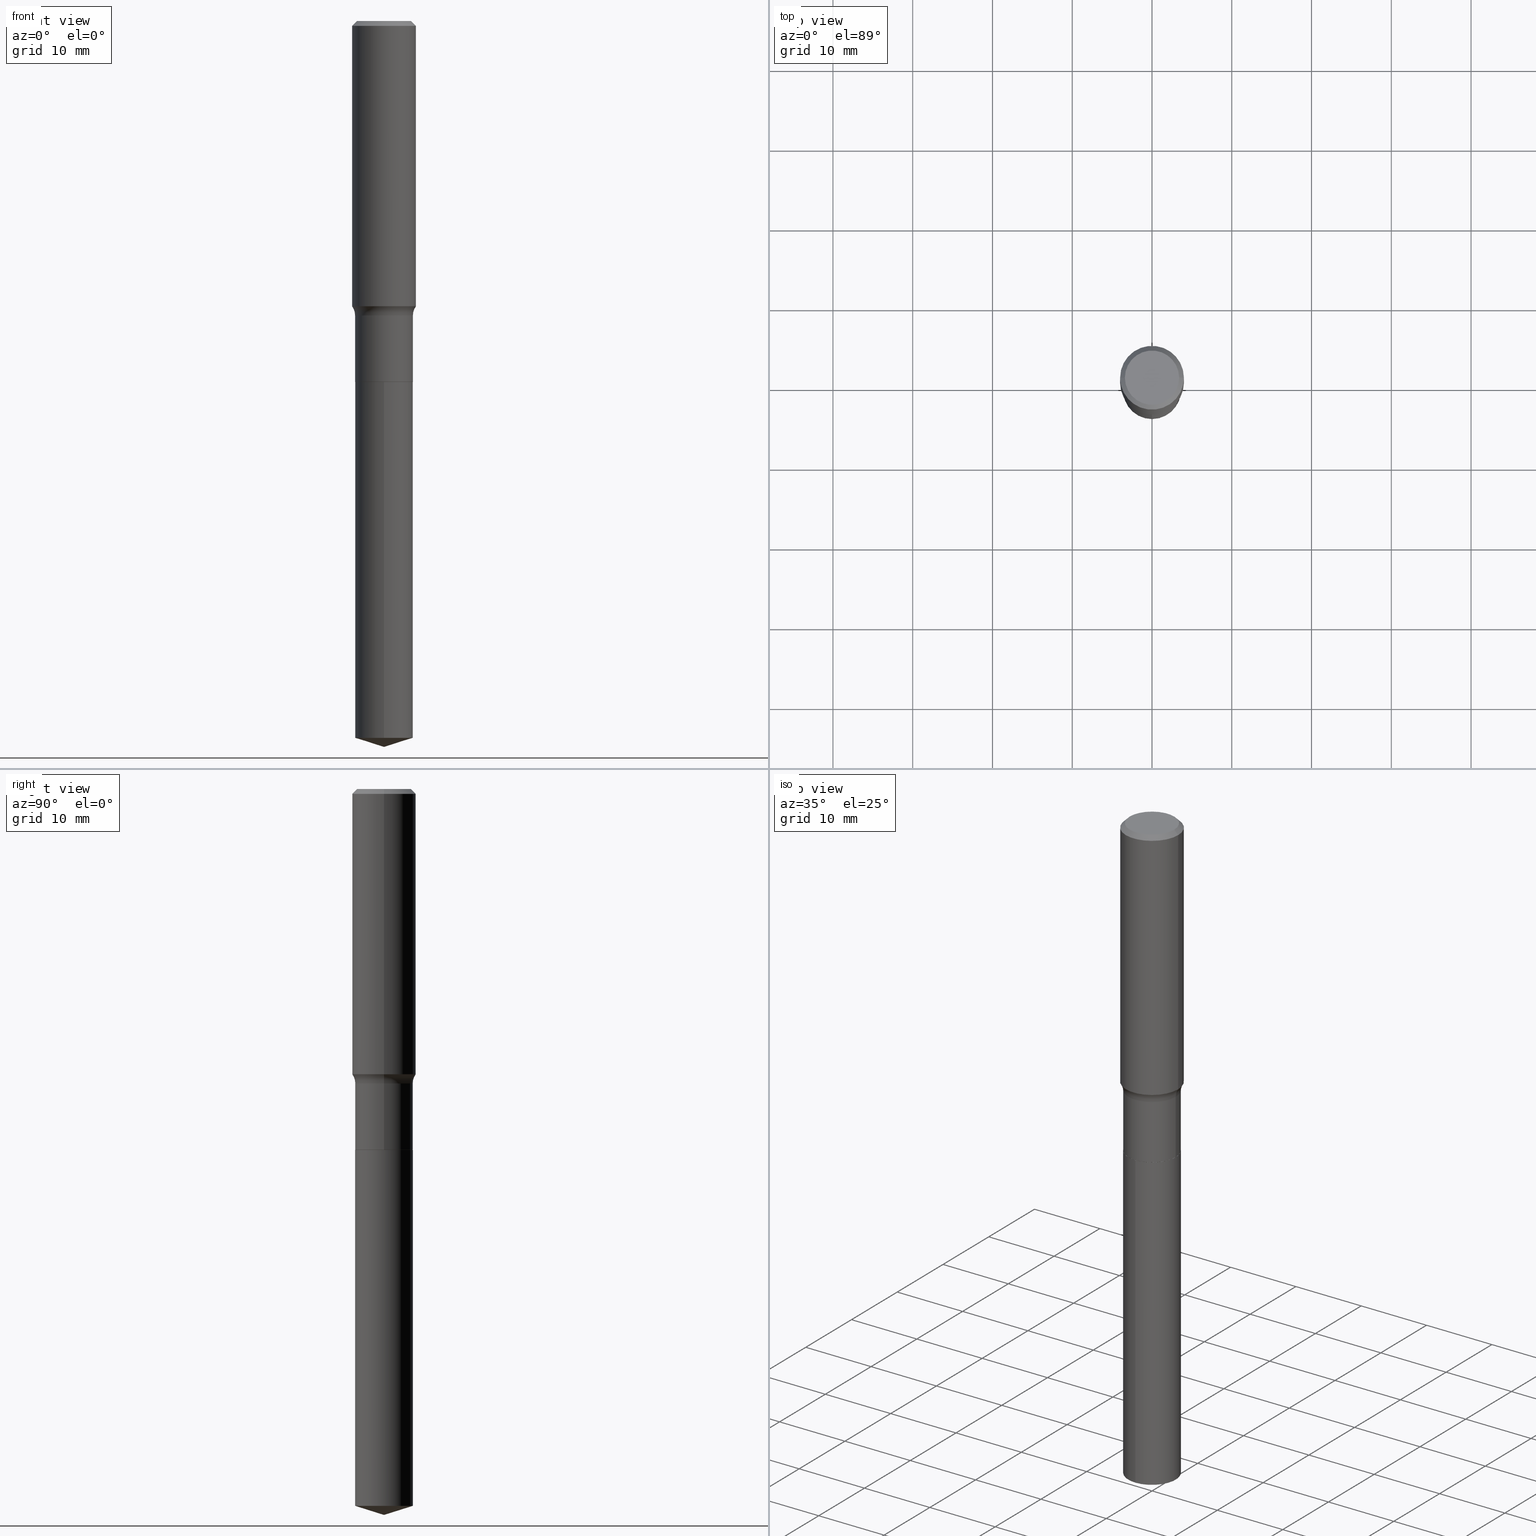
[diagram: canonical four-view strip — front | top / right | iso, engineering-drawing reading convention]
A machine part, canonical four-view strip (front | top / right | iso — engineering-drawing reading convention). The complete STEP part file that produces these views, byte-faithful:
ISO-10303-21;
HEADER;
FILE_DESCRIPTION (( 'STEP AP203' ),
    '1' );
FILE_NAME ('64145.STEP',
    '2024-04-19T15:20:46',
    ( '' ),
    ( '' ),
    'SwSTEP 2.0',
    'SolidWorks 2023',
    '' );
FILE_SCHEMA (( 'CONFIG_CONTROL_DESIGN' ));
ENDSEC;

DATA;
#1 = EDGE_CURVE ( 'NONE', #144, #358, #231, .T. ) ;
#2 = AXIS2_PLACEMENT_3D ( 'NONE', #35, #404, #405 ) ;
#3 = DIRECTION ( 'NONE',  ( -1.000000000000000000, 6.982962677686265922E-15, 0.000000000000000000 ) ) ;
#4 = ORIENTED_EDGE ( 'NONE', *, *, #477, .T. ) ;
#5 = EDGE_CURVE ( 'NONE', #464, #215, #459, .T. ) ;
#6 = CARTESIAN_POINT ( 'NONE',  ( 8.761496196201283882E-29, -1.250876678183154699E-14, -3.582699999999999996 ) ) ;
#7 = FACE_OUTER_BOUND ( 'NONE', #491, .T. ) ;
#8 = ORIENTED_EDGE ( 'NONE', *, *, #397, .F. ) ;
#9 = APPLICATION_PROTOCOL_DEFINITION ( 'international standard', 'config_control_design', 1994, #384 ) ;
#10 = ORIENTED_EDGE ( 'NONE', *, *, #339, .T. ) ;
#11 = PERSON_AND_ORGANIZATION_ROLE ( 'creator' ) ;
#12 = ORIENTED_EDGE ( 'NONE', *, *, #393, .T. ) ;
#13 = ORIENTED_EDGE ( 'NONE', *, *, #312, .F. ) ;
#14 = COORDINATED_UNIVERSAL_TIME_OFFSET ( 5, 0, .BEHIND. ) ;
#15 = CARTESIAN_POINT ( 'NONE',  ( 0.000000000000000000, 0.000000000000000000, 0.000000000000000000 ) ) ;
#16 = AXIS2_PLACEMENT_3D ( 'NONE', #382, #429, #271 ) ;
#17 = AXIS2_PLACEMENT_3D ( 'NONE', #173, #24, #285 ) ;
#18 = CARTESIAN_POINT ( 'NONE',  ( -9.964687741057865457E-16, -0.1427000000000062108, -1.781499999999999861 ) ) ;
#19 = ORIENTED_EDGE ( 'NONE', *, *, #238, .F. ) ;
#20 = LINE ( 'NONE', #55, #121 ) ;
#21 = DIRECTION ( 'NONE',  ( 1.000000000000000000, -6.982962677686265922E-15, 4.876176775795936353E-29 ) ) ;
#22 = AXIS2_PLACEMENT_3D ( 'NONE', #258, #488, #400 ) ;
#23 = ORIENTED_EDGE ( 'NONE', *, *, #5, .F. ) ;
#24 = DIRECTION ( 'NONE',  ( -2.445468806185136597E-29, 3.491481338843145583E-15, 1.000000000000000000 ) ) ;
#25 = VERTEX_POINT ( 'NONE', #134 ) ;
#26 = CARTESIAN_POINT ( 'NONE',  ( 4.356602678218821524E-29, -6.220074005149064918E-15, -1.781500000000000306 ) ) ;
#27 = ORIENTED_EDGE ( 'NONE', *, *, #43, .F. ) ;
#28 = PLANE ( 'NONE',  #107 ) ;
#29 = EDGE_CURVE ( 'NONE', #262, #441, #265, .T. ) ;
#30 = AXIS2_PLACEMENT_3D ( 'NONE', #349, #418, #236 ) ;
#31 = AXIS2_PLACEMENT_3D ( 'NONE', #321, #396, #280 ) ;
#32 = LOCAL_TIME ( 11, 20, 46.00000000000000000, #354 ) ;
#33 =( LENGTH_UNIT ( ) NAMED_UNIT ( * ) SI_UNIT ( $, .METRE. ) );
#34 = APPLICATION_CONTEXT ( 'configuration controlled 3d designs of mechanical parts and assemblies' ) ;
#35 = CARTESIAN_POINT ( 'NONE',  ( -8.751811493492588278E-28, 1.249492514799709219E-13, 35.78737874015747877 ) ) ;
#36 = CARTESIAN_POINT ( 'NONE',  ( 4.356602678218821524E-29, -6.220074005149064918E-15, -1.781500000000000306 ) ) ;
#37 = AXIS2_PLACEMENT_3D ( 'NONE', #289, #207, #209 ) ;
#38 = FACE_OUTER_BOUND ( 'NONE', #67, .T. ) ;
#39 = LOCAL_TIME ( 11, 20, 46.00000000000000000, #427 ) ;
#40 = DIRECTION ( 'NONE',  ( -2.445468806185136597E-29, 3.491481338843145583E-15, 1.000000000000000000 ) ) ;
#41 = DIRECTION ( 'NONE',  ( -2.445468806185136597E-29, 3.491481338843145583E-15, 1.000000000000000000 ) ) ;
#42 = LENGTH_MEASURE_WITH_UNIT ( LENGTH_MEASURE( 0.02539999999999999897 ), #33 );
#43 = EDGE_CURVE ( 'NONE', #58, #436, #202, .T. ) ;
#44 = CC_DESIGN_PERSON_AND_ORGANIZATION_ASSIGNMENT ( #116, #411, ( #259 ) ) ;
#45 = CARTESIAN_POINT ( 'NONE',  ( -0.1575000000000001676, -3.795455817087887933E-15, -1.407586107144545018 ) ) ;
#46 = ORIENTED_EDGE ( 'NONE', *, *, #339, .F. ) ;
#47 = CIRCLE ( 'NONE', #218, 0.1426999999999999935 ) ;
#48 = DIRECTION ( 'NONE',  ( -2.438088387897960049E-29, 3.491481338843145188E-15, 1.000000000000000000 ) ) ;
#49 = APPROVAL_ROLE ( '' ) ;
#50 = VERTEX_POINT ( 'NONE', #45 ) ;
#51 = ORIENTED_EDGE ( 'NONE', *, *, #238, .T. ) ;
#52 = APPROVAL_ROLE ( '' ) ;
#53 = CARTESIAN_POINT ( 'NONE',  ( 3.553999816028858649E-29, -5.074169829740743433E-15, -1.453300000000000036 ) ) ;
#54 = CALENDAR_DATE ( 2024, 19, 4 ) ;
#55 = CARTESIAN_POINT ( 'NONE',  ( 1.013944483929706307E-15, 0.1426999999999937763, -1.781500000000000972 ) ) ;
#56 = CIRCLE ( 'NONE', #150, 0.1426999999999999658 ) ;
#57 = PERSON_AND_ORGANIZATION_ROLE ( 'creator' ) ;
#58 = VERTEX_POINT ( 'NONE', #268 ) ;
#59 = DIRECTION ( 'NONE',  ( 7.105427357601001859E-15, 1.000000000000000000, -3.491481338843145583E-15 ) ) ;
#60 = ADVANCED_FACE ( 'NONE', ( #160 ), #191, .F. ) ;
#61 = EDGE_LOOP ( 'NONE', ( #138, #365, #266, #23 ) ) ;
#62 = CARTESIAN_POINT ( 'NONE',  ( -0.1426999999999999658, 1.013944483929662722E-15, -7.019320373793748916E-30 ) ) ;
#63 = ORIENTED_EDGE ( 'NONE', *, *, #89, .F. ) ;
#64 = DIRECTION ( 'NONE',  ( -2.445468806185136597E-29, 3.491481338843145583E-15, 1.000000000000000000 ) ) ;
#65 = AXIS2_PLACEMENT_3D ( 'NONE', #452, #374, #164 ) ;
#66 = FACE_OUTER_BOUND ( 'NONE', #288, .T. ) ;
#67 = EDGE_LOOP ( 'NONE', ( #330, #12, #93, #292 ) ) ;
#68 = LINE ( 'NONE', #372, #100 ) ;
#69 = DIRECTION ( 'NONE',  ( -2.445468806185136597E-29, 3.491481338843145583E-15, 1.000000000000000000 ) ) ;
#70 = EDGE_CURVE ( 'NONE', #454, #358, #389, .T. ) ;
#71 = CIRCLE ( 'NONE', #314, 0.1575000000000000011 ) ;
#72 = CIRCLE ( 'NONE', #457, 0.07799999999999999989 ) ;
#73 = AXIS2_PLACEMENT_3D ( 'NONE', #184, #333, #492 ) ;
#74 = CARTESIAN_POINT ( 'NONE',  ( 3.553999816028858649E-29, -5.074169829740743433E-15, -1.453300000000000036 ) ) ;
#75 = EDGE_CURVE ( 'NONE', #262, #275, #455, .T. ) ;
#76 = FACE_OUTER_BOUND ( 'NONE', #122, .T. ) ;
#77 = EDGE_CURVE ( 'NONE', #436, #58, #407, .T. ) ;
#78 = APPLICATION_PROTOCOL_DEFINITION ( 'international standard', 'config_control_design', 1994, #34 ) ;
#79 = CARTESIAN_POINT ( 'NONE',  ( -0.1426999999999999658, -4.632304563180530110E-15, -1.453300000000000036 ) ) ;
#80 = CARTESIAN_POINT ( 'NONE',  ( 5.777420054612421104E-31, -8.248624663016984002E-17, -0.02362500000000014588 ) ) ;
#81 = ORIENTED_EDGE ( 'NONE', *, *, #89, .T. ) ;
#82 = EDGE_CURVE ( 'NONE', #25, #310, #87, .T. ) ;
#83 = CC_DESIGN_DATE_AND_TIME_ASSIGNMENT ( #234, #94, ( #192 ) ) ;
#84 = CARTESIAN_POINT ( 'NONE',  ( -1.002970424325033577E-46, 1.431975951230896486E-32, 4.101342130344485961E-18 ) ) ;
#85 = PERSON ( 'UNSPECIFIED', 'UNSPECIFIED', 'UNSPECIFIED', ('UNSPECIFIED'), ('UNSPECIFIED'), ('UNSPECIFIED') ) ;
#86 = ORIENTED_EDGE ( 'NONE', *, *, #414, .F. ) ;
#87 = CIRCLE ( 'NONE', #360, 0.1426999999999999935 ) ;
#88 = DIRECTION ( 'NONE',  ( -2.445468806185136597E-29, 3.491481338843145583E-15, 1.000000000000000000 ) ) ;
#89 = EDGE_CURVE ( 'NONE', #378, #464, #217, .T. ) ;
#90 = EDGE_LOOP ( 'NONE', ( #97, #320, #104, #290 ) ) ;
#91 = APPROVAL_DATE_TIME ( #96, #120 ) ;
#92 = DIRECTION ( 'NONE',  ( -2.445500656237034607E-29, 3.491435727756035230E-15, 1.000000000000000000 ) ) ;
#93 = ORIENTED_EDGE ( 'NONE', *, *, #112, .T. ) ;
#94 = DATE_TIME_ROLE ( 'classification_date' ) ;
#95 = CARTESIAN_POINT ( 'NONE',  ( 0.1575000000000000011, -1.163014681279185964E-15, -0.02362500000000014588 ) ) ;
#96 = DATE_AND_TIME ( #466, #32 ) ;
#97 = ORIENTED_EDGE ( 'NONE', *, *, #70, .T. ) ;
#98 = DIRECTION ( 'NONE',  ( 1.000000000000000000, -6.982962677686266711E-15, 0.000000000000000000 ) ) ;
#99 = VECTOR ( 'NONE', #223, 39.37007874015748143 ) ;
#100 = VECTOR ( 'NONE', #325, 39.37007874015748143 ) ;
#101 = ORIENTED_EDGE ( 'NONE', *, *, #140, .T. ) ;
#102 = CARTESIAN_POINT ( 'NONE',  ( 1.013944483929749694E-15, 0.1426999999999937763, -1.781500000000000972 ) ) ;
#103 = DIRECTION ( 'NONE',  ( -2.445468806185136597E-29, 3.491481338843145583E-15, 1.000000000000000000 ) ) ;
#104 = ORIENTED_EDGE ( 'NONE', *, *, #82, .F. ) ;
#105 = AXIS2_PLACEMENT_3D ( 'NONE', #194, #117, #412 ) ;
#106 = ADVANCED_FACE ( 'NONE', ( #270 ), #168, .T. ) ;
#107 = AXIS2_PLACEMENT_3D ( 'NONE', #445, #444, #179 ) ;
#108 = EDGE_LOOP ( 'NONE', ( #126, #282, #249, #128 ) ) ;
#109 = DIRECTION ( 'NONE',  ( 1.000000000000000000, -6.982962677686265922E-15, 4.883557194083112901E-29 ) ) ;
#110 = CYLINDRICAL_SURFACE ( 'NONE', #425, 0.1575000000000000844 ) ;
#111 = CARTESIAN_POINT ( 'NONE',  ( 0.1421999999999999931, -7.213051297916053224E-15, -1.781500000000000750 ) ) ;
#112 = EDGE_CURVE ( 'NONE', #441, #385, #71, .T. ) ;
#113 = AXIS2_PLACEMENT_3D ( 'NONE', #74, #291, #109 ) ;
#114 = FACE_OUTER_BOUND ( 'NONE', #152, .T. ) ;
#115 = ORIENTED_EDGE ( 'NONE', *, *, #450, .F. ) ;
#116 = PERSON_AND_ORGANIZATION ( #85, #253 ) ;
#117 = DIRECTION ( 'NONE',  ( -2.445468806185136597E-29, 3.491481338843145583E-15, 1.000000000000000000 ) ) ;
#118 = CARTESIAN_POINT ( 'NONE',  ( -0.1426999999999999935, -4.632304563180530110E-15, -1.781000000000000583 ) ) ;
#119 = ORIENTED_EDGE ( 'NONE', *, *, #477, .F. ) ;
#120 = APPROVAL ( #281, 'UNSPECIFIED' ) ;
#121 = VECTOR ( 'NONE', #211, 39.37007874015748143 ) ;
#122 = EDGE_LOOP ( 'NONE', ( #246, #141, #101, #475 ) ) ;
#123 = CARTESIAN_POINT ( 'NONE',  ( 4.356602678218822085E-29, -6.220074005149066496E-15, -1.781500000000000750 ) ) ;
#124 = CARTESIAN_POINT ( 'NONE',  ( 0.1575000000000000844, -1.099816621735587677E-15, 7.679978421878603638E-30 ) ) ;
#125 =( NAMED_UNIT ( * ) SI_UNIT ( $, .STERADIAN. ) SOLID_ANGLE_UNIT ( ) );
#126 = ORIENTED_EDGE ( 'NONE', *, *, #311, .F. ) ;
#127 = ORIENTED_EDGE ( 'NONE', *, *, #82, .T. ) ;
#128 = ORIENTED_EDGE ( 'NONE', *, *, #451, .F. ) ;
#129 = DIRECTION ( 'NONE',  ( 2.445468806185136597E-29, -3.491481338843145583E-15, -1.000000000000000000 ) ) ;
#130 = PERSON_AND_ORGANIZATION ( #85, #253 ) ;
#131 = EDGE_LOOP ( 'NONE', ( #383, #10, #295, #230 ) ) ;
#132 = LINE ( 'NONE', #62, #334 ) ;
#133 = CC_DESIGN_APPROVAL ( #440, ( #180 ) ) ;
#134 = CARTESIAN_POINT ( 'NONE',  ( -9.964687741057865457E-16, -0.1427000000000062108, -1.781499999999999861 ) ) ;
#135 = PERSON_AND_ORGANIZATION_ROLE ( 'classification_officer' ) ;
#136 = LINE ( 'NONE', #95, #341 ) ;
#137 = PERSON_AND_ORGANIZATION ( #85, #253 ) ;
#138 = ORIENTED_EDGE ( 'NONE', *, *, #312, .T. ) ;
#139 = CYLINDRICAL_SURFACE ( 'NONE', #232, 0.1426999999999999658 ) ;
#140 = EDGE_CURVE ( 'NONE', #174, #275, #56, .T. ) ;
#141 = ORIENTED_EDGE ( 'NONE', *, *, #397, .T. ) ;
#142 = CARTESIAN_POINT ( 'NONE',  ( 4.356602678218822085E-29, -6.220074005149066496E-15, -1.781500000000000750 ) ) ;
#143 = CONICAL_SURFACE ( 'NONE', #442, 0.1575000000000000011, 0.7853981633974449483 ) ;
#144 = VERTEX_POINT ( 'NONE', #465 ) ;
#145 = FACE_OUTER_BOUND ( 'NONE', #419, .T. ) ;
#146 = UNCERTAINTY_MEASURE_WITH_UNIT (LENGTH_MEASURE( 1.000000000000000082E-05 ), #373, 'distance_accuracy_value', 'NONE');
#147 = ORIENTED_EDGE ( 'NONE', *, *, #1, .T. ) ;
#148 = ADVANCED_FACE ( 'NONE', ( #462 ), #423, .F. ) ;
#149 = CARTESIAN_POINT ( 'NONE',  ( 0.1575000000000000011, -1.182302868365756679E-15, -0.02362500000000014588 ) ) ;
#150 = AXIS2_PLACEMENT_3D ( 'NONE', #189, #40, #308 ) ;
#151 = CARTESIAN_POINT ( 'NONE',  ( 0.1338749999999999940, -1.040731925365424925E-15, 4.101342130351393887E-18 ) ) ;
#152 = EDGE_LOOP ( 'NONE', ( #119, #147, #413 ) ) ;
#153 = MECHANICAL_CONTEXT ( 'NONE', #384, 'mechanical' ) ;
#154 = ADVANCED_FACE ( 'NONE', ( #7 ), #352, .F. ) ;
#155 = DIRECTION ( 'NONE',  ( -6.982962677686265922E-15, -1.000000000000000000, 3.828798869886843840E-15 ) ) ;
#156 = DIRECTION ( 'NONE',  ( 2.445468806185136597E-29, -3.491481338843145583E-15, -1.000000000000000000 ) ) ;
#157 = CARTESIAN_POINT ( 'NONE',  ( 0.2206999999999999518, -6.615309692706102003E-15, -1.453300000000000036 ) ) ;
#158 = AXIS2_PLACEMENT_3D ( 'NONE', #142, #355, #244 ) ;
#159 =( GEOMETRIC_REPRESENTATION_CONTEXT ( 3 ) GLOBAL_UNCERTAINTY_ASSIGNED_CONTEXT ( ( #146 ) ) GLOBAL_UNIT_ASSIGNED_CONTEXT ( ( #373, #343, #125 ) ) REPRESENTATION_CONTEXT ( 'NONE', 'WORKASPACE' ) );
#160 = FACE_OUTER_BOUND ( 'NONE', #348, .T. ) ;
#161 = EDGE_CURVE ( 'NONE', #50, #385, #269, .T. ) ;
#162 = CARTESIAN_POINT ( 'NONE',  ( 4.356602678218822085E-29, -6.220074005149066496E-15, -1.781500000000000750 ) ) ;
#163 = PERSON_AND_ORGANIZATION ( #85, #253 ) ;
#164 = DIRECTION ( 'NONE',  ( 6.982962677686265922E-15, 1.000000000000000000, -3.491435727756035230E-15 ) ) ;
#165 = DIRECTION ( 'NONE',  ( -6.982962677686266711E-15, -1.000000000000000000, 3.491481338843145583E-15 ) ) ;
#166 = DATE_TIME_ROLE ( 'creation_date' ) ;
#167 = CARTESIAN_POINT ( 'NONE',  ( 1.013944483929749694E-15, 0.1426999999999876700, -3.537706862826970333 ) ) ;
#168 = CONICAL_SURFACE ( 'NONE', #212, 0.1575000000000000011, 0.7853981633974449483 ) ;
#169 = CC_DESIGN_APPROVAL ( #120, ( #458 ) ) ;
#170 = DIRECTION ( 'NONE',  ( -2.445468806185136877E-29, 3.491481338843145188E-15, 1.000000000000000000 ) ) ;
#171 = EDGE_CURVE ( 'NONE', #215, #206, #328, .T. ) ;
#172 = ORIENTED_EDGE ( 'NONE', *, *, #29, .F. ) ;
#173 = CARTESIAN_POINT ( 'NONE',  ( 4.355379943815729283E-29, -6.218328264479644203E-15, -1.781000000000000583 ) ) ;
#174 = VERTEX_POINT ( 'NONE', #79 ) ;
#175 = DIRECTION ( 'NONE',  ( -1.000000000000000000, 7.105427357600997914E-15, 0.000000000000000000 ) ) ;
#176 = VECTOR ( 'NONE', #344, 39.37007874015748143 ) ;
#177 = AXIS2_PLACEMENT_3D ( 'NONE', #255, #254, #221 ) ;
#178 = DIRECTION ( 'NONE',  ( 1.000000000000000000, -6.982962677686265922E-15, 0.000000000000000000 ) ) ;
#179 = DIRECTION ( 'NONE',  ( -1.000000000000000000, 6.982962677686265922E-15, -4.876176775795935793E-29 ) ) ;
#180 = PRODUCT_DEFINITION ( 'UNKNOWN', '', #458, #227 ) ;
#181 = ORIENTED_EDGE ( 'NONE', *, *, #346, .F. ) ;
#182 = CARTESIAN_POINT ( 'NONE',  ( 8.761381719365510106E-29, -1.250892929413492216E-14, -3.582699999999999996 ) ) ;
#183 = ORIENTED_EDGE ( 'NONE', *, *, #140, .F. ) ;
#184 = CARTESIAN_POINT ( 'NONE',  ( 0.000000000000000000, 0.000000000000000000, 0.000000000000000000 ) ) ;
#185 = AXIS2_PLACEMENT_3D ( 'NONE', #188, #88, #304 ) ;
#186 = EDGE_CURVE ( 'NONE', #215, #275, #267, .T. ) ;
#187 = DIRECTION ( 'NONE',  ( -2.445468806185136597E-29, 3.491481338843145583E-15, 1.000000000000000000 ) ) ;
#188 = CARTESIAN_POINT ( 'NONE',  ( 3.553999816028858649E-29, -5.074169829740743433E-15, -1.453300000000000036 ) ) ;
#189 = CARTESIAN_POINT ( 'NONE',  ( 3.553999816028858649E-29, -5.074169829740743433E-15, -1.453300000000000036 ) ) ;
#190 = ADVANCED_FACE ( 'NONE', ( #38 ), #143, .T. ) ;
#191 = PLANE ( 'NONE',  #447 ) ;
#192 = SECURITY_CLASSIFICATION ( '', '', #237 ) ;
#193 = ORIENTED_EDGE ( 'NONE', *, *, #29, .T. ) ;
#194 = CARTESIAN_POINT ( 'NONE',  ( 4.355379943815729283E-29, -6.218328264479644203E-15, -1.781000000000000583 ) ) ;
#195 = DIRECTION ( 'NONE',  ( 1.000000000000000000, -6.982962677686266711E-15, 4.876170806578254279E-29 ) ) ;
#196 = APPROVAL_DATE_TIME ( #391, #440 ) ;
#197 = EDGE_LOOP ( 'NONE', ( #361, #371, #467, #172 ) ) ;
#198 = DIRECTION ( 'NONE',  ( 0.7071067811864267805, -2.468850131080992517E-15, 0.7071067811866682540 ) ) ;
#199 = CALENDAR_DATE ( 2024, 19, 4 ) ;
#200 = CARTESIAN_POINT ( 'NONE',  ( 8.651407713750158819E-29, -1.235175739135348952E-14, -3.537706862826969889 ) ) ;
#201 = CALENDAR_DATE ( 2024, 19, 4 ) ;
#202 = CIRCLE ( 'NONE', #16, 0.1338749999999999940 ) ;
#203 = CONICAL_SURFACE ( 'NONE', #158, 0.1421999999999999931, 0.7853981633972775267 ) ;
#204 = CARTESIAN_POINT ( 'NONE',  ( -0.1575000000000000011, 1.017330375105417098E-15, -0.02362500000000014588 ) ) ;
#205 = COORDINATED_UNIVERSAL_TIME_OFFSET ( 5, 0, .BEHIND. ) ;
#206 = VERTEX_POINT ( 'NONE', #118 ) ;
#207 = DIRECTION ( 'NONE',  ( -2.445468806185136597E-29, 3.491481338843145583E-15, 1.000000000000000000 ) ) ;
#208 = ORIENTED_EDGE ( 'NONE', *, *, #75, .T. ) ;
#209 = DIRECTION ( 'NONE',  ( 1.000000000000000000, -6.982962677686267499E-15, 0.000000000000000000 ) ) ;
#210 = EDGE_LOOP ( 'NONE', ( #484, #300 ) ) ;
#211 = DIRECTION ( 'NONE',  ( -2.445500656237034327E-29, 3.491435727756035230E-15, 1.000000000000000000 ) ) ;
#212 = AXIS2_PLACEMENT_3D ( 'NONE', #303, #129, #313 ) ;
#213 = ORIENTED_EDGE ( 'NONE', *, *, #347, .F. ) ;
#214 = DIRECTION ( 'NONE',  ( -6.982962677686265922E-15, -1.000000000000000000, 3.828798869886843840E-15 ) ) ;
#215 = VERTEX_POINT ( 'NONE', #301 ) ;
#216 = CARTESIAN_POINT ( 'NONE',  ( -9.964687741057439472E-16, -0.1427000000000123725, -3.537706862826969445 ) ) ;
#217 = CIRCLE ( 'NONE', #284, 0.1421999999999999931 ) ;
#218 = AXIS2_PLACEMENT_3D ( 'NONE', #200, #351, #276 ) ;
#219 = VECTOR ( 'NONE', #296, 39.37007874015748854 ) ;
#220 = LINE ( 'NONE', #182, #219 ) ;
#221 = DIRECTION ( 'NONE',  ( 1.000000000000000000, -6.982962677686267499E-15, 0.000000000000000000 ) ) ;
#222 = ADVANCED_FACE ( 'NONE', ( #456 ), #480, .T. ) ;
#223 = DIRECTION ( 'NONE',  ( -2.445468806185136877E-29, 3.491481338843145188E-15, 1.000000000000000000 ) ) ;
#224 = VECTOR ( 'NONE', #198, 39.37007874015748143 ) ;
#225 = AXIS2_PLACEMENT_3D ( 'NONE', #123, #468, #98 ) ;
#226 = CC_DESIGN_SECURITY_CLASSIFICATION ( #192, ( #458 ) ) ;
#227 = DESIGN_CONTEXT ( 'detailed design', #34, 'design' ) ;
#228 = DIRECTION ( 'NONE',  ( -2.445468806185136877E-29, 3.491481338843145188E-15, 1.000000000000000000 ) ) ;
#229 = DIRECTION ( 'NONE',  ( 1.000000000000000000, -6.982962677686266711E-15, 0.000000000000000000 ) ) ;
#230 = ORIENTED_EDGE ( 'NONE', *, *, #186, .F. ) ;
#231 = LINE ( 'NONE', #6, #176 ) ;
#232 = AXIS2_PLACEMENT_3D ( 'NONE', #316, #103, #21 ) ;
#233 = ORIENTED_EDGE ( 'NONE', *, *, #406, .T. ) ;
#234 = DATE_AND_TIME ( #201, #39 ) ;
#235 = FACE_OUTER_BOUND ( 'NONE', #197, .T. ) ;
#236 = DIRECTION ( 'NONE',  ( -6.982962677686265922E-15, -1.000000000000000000, 3.828798869886843840E-15 ) ) ;
#237 = SECURITY_CLASSIFICATION_LEVEL ( 'unclassified' ) ;
#238 = EDGE_CURVE ( 'NONE', #206, #215, #368, .T. ) ;
#239 = CC_DESIGN_PERSON_AND_ORGANIZATION_ASSIGNMENT ( #130, #57, ( #180 ) ) ;
#240 = CARTESIAN_POINT ( 'NONE',  ( 4.356602678218822085E-29, -6.220074005149066496E-15, -1.781500000000000750 ) ) ;
#241 = APPROVAL_ROLE ( '' ) ;
#242 = CLOSED_SHELL ( 'NONE', ( #248, #190, #357, #402, #376, #422, #154, #415, #106, #460, #60, #222 ) ) ;
#243 = TOROIDAL_SURFACE ( 'NONE', #113, 0.2206999999999999518, 0.07799999999999997213 ) ;
#244 = DIRECTION ( 'NONE',  ( 1.000000000000000000, -6.982962677686266711E-15, 0.000000000000000000 ) ) ;
#245 = APPROVAL_PERSON_ORGANIZATION ( #137, #120, #49 ) ;
#246 = ORIENTED_EDGE ( 'NONE', *, *, #406, .F. ) ;
#247 = DIRECTION ( 'NONE',  ( 1.000000000000000000, -6.982962677686266711E-15, 0.000000000000000000 ) ) ;
#248 = ADVANCED_FACE ( 'NONE', ( #362 ), #203, .T. ) ;
#249 = ORIENTED_EDGE ( 'NONE', *, *, #251, .T. ) ;
#250 = CARTESIAN_POINT ( 'NONE',  ( -0.1421999999999999931, -5.207033007724092091E-15, -1.781500000000000750 ) ) ;
#251 = EDGE_CURVE ( 'NONE', #454, #25, #388, .T. ) ;
#252 = VECTOR ( 'NONE', #228, 39.37007874015748143 ) ;
#253 = ORGANIZATION ( 'UNSPECIFIED', 'UNSPECIFIED', '' ) ;
#254 = DIRECTION ( 'NONE',  ( -2.445468806185136597E-29, 3.491481338843145583E-15, 1.000000000000000000 ) ) ;
#255 = CARTESIAN_POINT ( 'NONE',  ( 3.442207917041554206E-29, -4.914560625910047114E-15, -1.407586107144545018 ) ) ;
#256 = CC_DESIGN_PERSON_AND_ORGANIZATION_ASSIGNMENT ( #163, #309, ( #458 ) ) ;
#257 = ORIENTED_EDGE ( 'NONE', *, *, #186, .T. ) ;
#258 = CARTESIAN_POINT ( 'NONE',  ( 5.777420054612421104E-31, -8.248624663016984002E-17, -0.02362500000000014588 ) ) ;
#259 = PRODUCT ( '64145', '64145', '', ( #153 ) ) ;
#260 = FACE_OUTER_BOUND ( 'NONE', #90, .T. ) ;
#261 = CC_DESIGN_DATE_AND_TIME_ASSIGNMENT ( #432, #166, ( #180 ) ) ;
#262 = VERTEX_POINT ( 'NONE', #483 ) ;
#263 = VECTOR ( 'NONE', #416, 39.37007874015748143 ) ;
#264 = AXIS2_PLACEMENT_3D ( 'NONE', #36, #408, #214 ) ;
#265 = LINE ( 'NONE', #124, #252 ) ;
#266 = ORIENTED_EDGE ( 'NONE', *, *, #171, .F. ) ;
#267 = LINE ( 'NONE', #338, #99 ) ;
#268 = CARTESIAN_POINT ( 'NONE',  ( -0.1338749999999999940, 9.760872517903331886E-16, 4.101342130337804525E-18 ) ) ;
#269 = LINE ( 'NONE', #379, #263 ) ;
#270 = FACE_OUTER_BOUND ( 'NONE', #318, .T. ) ;
#271 = DIRECTION ( 'NONE',  ( 1.000000000000000000, -6.982962677686266711E-15, 4.876170806578254279E-29 ) ) ;
#272 = AXIS2_PLACEMENT_3D ( 'NONE', #489, #326, #364 ) ;
#273 = PERSON_AND_ORGANIZATION ( #85, #253 ) ;
#274 = CIRCLE ( 'NONE', #335, 0.1426999999999999935 ) ;
#275 = VERTEX_POINT ( 'NONE', #437 ) ;
#276 = DIRECTION ( 'NONE',  ( -6.982962677686265922E-15, -1.000000000000000000, 3.828798869886843840E-15 ) ) ;
#277 = ADVANCED_FACE ( 'NONE', ( #145 ), #487, .T. ) ;
#278 = CARTESIAN_POINT ( 'NONE',  ( 0.1421999999999999931, -7.213051297916053224E-15, -1.781500000000000750 ) ) ;
#279 = APPROVAL_DATE_TIME ( #350, #370 ) ;
#280 = DIRECTION ( 'NONE',  ( -6.982962677686265922E-15, -1.000000000000000000, 3.500519750498671300E-15 ) ) ;
#281 = APPROVAL_STATUS ( 'not_yet_approved' ) ;
#282 = ORIENTED_EDGE ( 'NONE', *, *, #347, .T. ) ;
#283 = DIRECTION ( 'NONE',  ( 0.7071067811865451302, -7.319954787623248157E-15, -0.7071067811865499042 ) ) ;
#284 = AXIS2_PLACEMENT_3D ( 'NONE', #162, #41, #229 ) ;
#285 = DIRECTION ( 'NONE',  ( 1.000000000000000000, -6.982962677686265133E-15, 0.000000000000000000 ) ) ;
#286 = EDGE_CURVE ( 'NONE', #275, #174, #469, .T. ) ;
#287 = PRODUCT_RELATED_PRODUCT_CATEGORY ( 'detail', '', ( #259 ) ) ;
#288 = EDGE_LOOP ( 'NONE', ( #398, #233, #193, #86 ) ) ;
#289 = CARTESIAN_POINT ( 'NONE',  ( 3.442207917041554206E-29, -4.914560625910047114E-15, -1.407586107144545018 ) ) ;
#290 = ORIENTED_EDGE ( 'NONE', *, *, #251, .F. ) ;
#291 = DIRECTION ( 'NONE',  ( -2.445468806185136597E-29, 3.491481338843145583E-15, 1.000000000000000000 ) ) ;
#292 = ORIENTED_EDGE ( 'NONE', *, *, #327, .F. ) ;
#293 = FACE_OUTER_BOUND ( 'NONE', #421, .T. ) ;
#294 = VECTOR ( 'NONE', #479, 39.37007874015748143 ) ;
#295 = ORIENTED_EDGE ( 'NONE', *, *, #286, .F. ) ;
#296 = DIRECTION ( 'NONE',  ( -6.659769872151637611E-15, -0.9537169507482274877, 0.3007057995042712317 ) ) ;
#297 = AXIS2_PLACEMENT_3D ( 'NONE', #15, #392, #356 ) ;
#298 = LOCAL_TIME ( 11, 20, 46.00000000000000000, #474 ) ;
#299 = PRODUCT_DEFINITION_SHAPE ( 'NONE', 'NONE',  #180 ) ;
#300 = ORIENTED_EDGE ( 'NONE', *, *, #77, .T. ) ;
#301 = CARTESIAN_POINT ( 'NONE',  ( 0.1426999999999999935, -7.214797038585473939E-15, -1.781000000000000583 ) ) ;
#302 = AXIS2_PLACEMENT_3D ( 'NONE', #157, #165, #420 ) ;
#303 = CARTESIAN_POINT ( 'NONE',  ( 5.777420054612421104E-31, -8.248624663016984002E-17, -0.02362500000000014588 ) ) ;
#304 = DIRECTION ( 'NONE',  ( 1.000000000000000000, -6.982962677686265922E-15, 4.883557194083112901E-29 ) ) ;
#305 = DIRECTION ( 'NONE',  ( 1.000000000000000000, -6.982962677686265922E-15, 0.000000000000000000 ) ) ;
#306 = ORIENTED_EDGE ( 'NONE', *, *, #286, .T. ) ;
#307 = MANIFOLD_SOLID_BREP ( 'Body-Move/Copy2[2]', #242 ) ;
#308 = DIRECTION ( 'NONE',  ( 1.000000000000000000, -6.982962677686265922E-15, 0.000000000000000000 ) ) ;
#309 = PERSON_AND_ORGANIZATION_ROLE ( 'design_supplier' ) ;
#310 = VERTEX_POINT ( 'NONE', #102 ) ;
#311 = EDGE_CURVE ( 'NONE', #358, #310, #20, .T. ) ;
#312 = EDGE_CURVE ( 'NONE', #464, #378, #409, .T. ) ;
#313 = DIRECTION ( 'NONE',  ( -1.000000000000000000, 6.982962677686265922E-15, 0.000000000000000000 ) ) ;
#314 = AXIS2_PLACEMENT_3D ( 'NONE', #377, #342, #305 ) ;
#315 = CALENDAR_DATE ( 2024, 19, 4 ) ;
#316 = CARTESIAN_POINT ( 'NONE',  ( 0.000000000000000000, 0.000000000000000000, 0.000000000000000000 ) ) ;
#317 = PERSON_AND_ORGANIZATION ( #85, #253 ) ;
#318 = EDGE_LOOP ( 'NONE', ( #424, #27, #324, #478 ) ) ;
#319 = FACE_OUTER_BOUND ( 'NONE', #108, .T. ) ;
#320 = ORIENTED_EDGE ( 'NONE', *, *, #311, .T. ) ;
#321 = CARTESIAN_POINT ( 'NONE',  ( -8.751811493492588278E-28, 1.249492514799709219E-13, 35.78737874015747877 ) ) ;
#322 = AXIS2_PLACEMENT_3D ( 'NONE', #476, #92, #387 ) ;
#323 = DIRECTION ( 'NONE',  ( -2.445500656237034327E-29, 3.491435727756035230E-15, 1.000000000000000000 ) ) ;
#324 = ORIENTED_EDGE ( 'NONE', *, *, #327, .T. ) ;
#325 = DIRECTION ( 'NONE',  ( -0.7071067811864267805, 7.493145998869918709E-15, 0.7071067811866682540 ) ) ;
#326 = DIRECTION ( 'NONE',  ( -2.445468806185136597E-29, 3.491481338843145583E-15, 1.000000000000000000 ) ) ;
#327 = EDGE_CURVE ( 'NONE', #58, #385, #395, .T. ) ;
#328 = CIRCLE ( 'NONE', #105, 0.1426999999999999935 ) ;
#329 = APPROVAL_PERSON_ORGANIZATION ( #317, #370, #52 ) ;
#330 = ORIENTED_EDGE ( 'NONE', *, *, #77, .F. ) ;
#331 = DIRECTION ( 'NONE',  ( 1.000000000000000000, -6.982962677686267499E-15, 4.876176775795936353E-29 ) ) ;
#332 = DIMENSIONAL_EXPONENTS ( 1.000000000000000000, 0.000000000000000000, 0.000000000000000000, 0.000000000000000000, 0.000000000000000000, 0.000000000000000000, 0.000000000000000000 ) ;
#333 = DIRECTION ( 'NONE',  ( 0.000000000000000000, 0.000000000000000000, 1.000000000000000000 ) ) ;
#334 = VECTOR ( 'NONE', #170, 39.37007874015748143 ) ;
#335 = AXIS2_PLACEMENT_3D ( 'NONE', #26, #486, #485 ) ;
#336 = EDGE_LOOP ( 'NONE', ( #127, #482 ) ) ;
#337 = PERSON_AND_ORGANIZATION ( #85, #253 ) ;
#338 = CARTESIAN_POINT ( 'NONE',  ( 0.1426999999999999658, -9.964687741058299330E-16, 6.958304259060799625E-30 ) ) ;
#339 = EDGE_CURVE ( 'NONE', #206, #174, #132, .T. ) ;
#340 = CC_DESIGN_PERSON_AND_ORGANIZATION_ASSIGNMENT ( #345, #11, ( #458 ) ) ;
#341 = VECTOR ( 'NONE', #283, 39.37007874015748143 ) ;
#342 = DIRECTION ( 'NONE',  ( -2.445468806185136597E-29, 3.491481338843145583E-15, 1.000000000000000000 ) ) ;
#343 =( NAMED_UNIT ( * ) PLANE_ANGLE_UNIT ( ) SI_UNIT ( $, .RADIAN. ) );
#344 = DIRECTION ( 'NONE',  ( 6.776566513254262871E-15, 0.9537169507482295971, 0.3007057995042646259 ) ) ;
#345 = PERSON_AND_ORGANIZATION ( #85, #253 ) ;
#346 = EDGE_CURVE ( 'NONE', #262, #50, #435, .T. ) ;
#347 = EDGE_CURVE ( 'NONE', #358, #454, #47, .T. ) ;
#348 = EDGE_LOOP ( 'NONE', ( #13, #63 ) ) ;
#349 = CARTESIAN_POINT ( 'NONE',  ( 8.651407713750158819E-29, -1.235175739135348952E-14, -3.537706862826969889 ) ) ;
#350 = DATE_AND_TIME ( #54, #470 ) ;
#351 = DIRECTION ( 'NONE',  ( -2.445500656237034607E-29, 3.491435727756035230E-15, 1.000000000000000000 ) ) ;
#352 = TOROIDAL_SURFACE ( 'NONE', #185, 0.2206999999999999518, 0.07799999999999997213 ) ;
#353 = APPROVAL_PERSON_ORGANIZATION ( #337, #440, #241 ) ;
#354 = COORDINATED_UNIVERSAL_TIME_OFFSET ( 5, 0, .BEHIND. ) ;
#355 = DIRECTION ( 'NONE',  ( -2.445468806185136597E-29, 3.491481338843145583E-15, 1.000000000000000000 ) ) ;
#356 = DIRECTION ( 'NONE',  ( 1.000000000000000000, -6.982962677686267499E-15, 4.876176775795936353E-29 ) ) ;
#357 = ADVANCED_FACE ( 'NONE', ( #235 ), #428, .T. ) ;
#358 = VERTEX_POINT ( 'NONE', #167 ) ;
#359 = CYLINDRICAL_SURFACE ( 'NONE', #322, 0.1426999999999999935 ) ;
#360 = AXIS2_PLACEMENT_3D ( 'NONE', #375, #426, #155 ) ;
#361 = ORIENTED_EDGE ( 'NONE', *, *, #346, .T. ) ;
#362 = FACE_OUTER_BOUND ( 'NONE', #61, .T. ) ;
#363 = CC_DESIGN_APPROVAL ( #370, ( #192 ) ) ;
#364 = DIRECTION ( 'NONE',  ( 1.000000000000000000, -6.982962677686265922E-15, 4.876176775795936353E-29 ) ) ;
#365 = ORIENTED_EDGE ( 'NONE', *, *, #450, .T. ) ;
#366 = FACE_OUTER_BOUND ( 'NONE', #210, .T. ) ;
#367 = AXIS2_PLACEMENT_3D ( 'NONE', #84, #187, #195 ) ;
#368 = CIRCLE ( 'NONE', #17, 0.1426999999999999935 ) ;
#369 = ADVANCED_FACE ( 'NONE', ( #319 ), #359, .T. ) ;
#370 = APPROVAL ( #472, 'UNSPECIFIED' ) ;
#371 = ORIENTED_EDGE ( 'NONE', *, *, #161, .T. ) ;
#372 = CARTESIAN_POINT ( 'NONE',  ( -0.1421999999999999931, -5.209682234898204080E-15, -1.781500000000000750 ) ) ;
#373 =( CONVERSION_BASED_UNIT ( 'INCH', #42 ) LENGTH_UNIT ( ) NAMED_UNIT ( #332 ) );
#374 = DIRECTION ( 'NONE',  ( 2.445500656237034327E-29, -3.491435727756035230E-15, -1.000000000000000000 ) ) ;
#375 = CARTESIAN_POINT ( 'NONE',  ( 4.356602678218821524E-29, -6.220074005149064918E-15, -1.781500000000000306 ) ) ;
#376 = ADVANCED_FACE ( 'NONE', ( #439 ), #139, .T. ) ;
#377 = CARTESIAN_POINT ( 'NONE',  ( 5.777420054612421104E-31, -8.248624663016984002E-17, -0.02362500000000014588 ) ) ;
#378 = VERTEX_POINT ( 'NONE', #250 ) ;
#379 = CARTESIAN_POINT ( 'NONE',  ( -0.1575000000000000844, 1.119104808822158392E-15, -7.747322767151481189E-30 ) ) ;
#380 = CLOSED_SHELL ( 'NONE', ( #446, #433, #277, #369, #148 ) ) ;
#381 = CIRCLE ( 'NONE', #177, 0.1575000000000001676 ) ;
#382 = CARTESIAN_POINT ( 'NONE',  ( -1.002970424325033577E-46, 1.431975951230896486E-32, 4.101342130344485961E-18 ) ) ;
#383 = ORIENTED_EDGE ( 'NONE', *, *, #171, .T. ) ;
#384 = APPLICATION_CONTEXT ( 'configuration controlled 3d designs of mechanical parts and assemblies' ) ;
#385 = VERTEX_POINT ( 'NONE', #473 ) ;
#386 = APPROVAL_STATUS ( 'not_yet_approved' ) ;
#387 = DIRECTION ( 'NONE',  ( -6.982962677686265922E-15, -1.000000000000000000, 3.828798869886843840E-15 ) ) ;
#388 = LINE ( 'NONE', #18, #417 ) ;
#389 = CIRCLE ( 'NONE', #30, 0.1426999999999999935 ) ;
#390 = AXIS2_PLACEMENT_3D ( 'NONE', #240, #431, #247 ) ;
#391 = DATE_AND_TIME ( #315, #298 ) ;
#392 = DIRECTION ( 'NONE',  ( -2.445468806185136597E-29, 3.491481338843145583E-15, 1.000000000000000000 ) ) ;
#393 = EDGE_CURVE ( 'NONE', #436, #441, #136, .T. ) ;
#394 = EDGE_LOOP ( 'NONE', ( #115, #81, #438, #19 ) ) ;
#395 = LINE ( 'NONE', #204, #294 ) ;
#396 = DIRECTION ( 'NONE',  ( -2.445500656237034607E-29, 3.491435727756035230E-15, 1.000000000000000000 ) ) ;
#397 = EDGE_CURVE ( 'NONE', #50, #174, #72, .T. ) ;
#398 = ORIENTED_EDGE ( 'NONE', *, *, #161, .F. ) ;
#399 = AXIS2_PLACEMENT_3D ( 'NONE', #53, #64, #178 ) ;
#400 = DIRECTION ( 'NONE',  ( 1.000000000000000000, -6.982962677686265922E-15, 0.000000000000000000 ) ) ;
#401 = LOCAL_TIME ( 11, 20, 46.00000000000000000, #205 ) ;
#402 = ADVANCED_FACE ( 'NONE', ( #76 ), #243, .F. ) ;
#403 = ORIENTED_EDGE ( 'NONE', *, *, #1, .F. ) ;
#404 = DIRECTION ( 'NONE',  ( -2.445500656237034607E-29, 3.491435727756035230E-15, 1.000000000000000000 ) ) ;
#405 = DIRECTION ( 'NONE',  ( -6.982962677686265922E-15, -1.000000000000000000, 3.500519750498671300E-15 ) ) ;
#406 = EDGE_CURVE ( 'NONE', #50, #262, #381, .T. ) ;
#407 = CIRCLE ( 'NONE', #367, 0.1338749999999999940 ) ;
#408 = DIRECTION ( 'NONE',  ( -2.445500656237034607E-29, 3.491435727756035230E-15, 1.000000000000000000 ) ) ;
#409 = CIRCLE ( 'NONE', #390, 0.1421999999999999931 ) ;
#410 = CYLINDRICAL_SURFACE ( 'NONE', #264, 0.1426999999999999935 ) ;
#411 = PERSON_AND_ORGANIZATION_ROLE ( 'design_owner' ) ;
#412 = DIRECTION ( 'NONE',  ( 1.000000000000000000, -6.982962677686265133E-15, 0.000000000000000000 ) ) ;
#413 = ORIENTED_EDGE ( 'NONE', *, *, #70, .F. ) ;
#414 = EDGE_CURVE ( 'NONE', #385, #441, #449, .T. ) ;
#415 = ADVANCED_FACE ( 'NONE', ( #66 ), #110, .T. ) ;
#416 = DIRECTION ( 'NONE',  ( -2.445468806185136877E-29, 3.491481338843145188E-15, 1.000000000000000000 ) ) ;
#417 = VECTOR ( 'NONE', #323, 39.37007874015748143 ) ;
#418 = DIRECTION ( 'NONE',  ( -2.445500656237034607E-29, 3.491435727756035230E-15, 1.000000000000000000 ) ) ;
#419 = EDGE_LOOP ( 'NONE', ( #403, #4, #213 ) ) ;
#420 = DIRECTION ( 'NONE',  ( 1.000000000000000000, -6.982962677686270655E-15, 0.000000000000000000 ) ) ;
#421 = EDGE_LOOP ( 'NONE', ( #46, #51, #257, #183 ) ) ;
#422 = ADVANCED_FACE ( 'NONE', ( #293 ), #490, .T. ) ;
#423 = PLANE ( 'NONE',  #65 ) ;
#424 = ORIENTED_EDGE ( 'NONE', *, *, #393, .F. ) ;
#425 = AXIS2_PLACEMENT_3D ( 'NONE', #448, #69, #331 ) ;
#426 = DIRECTION ( 'NONE',  ( -2.445500656237034607E-29, 3.491435727756035230E-15, 1.000000000000000000 ) ) ;
#427 = COORDINATED_UNIVERSAL_TIME_OFFSET ( 5, 0, .BEHIND. ) ;
#428 = CYLINDRICAL_SURFACE ( 'NONE', #297, 0.1575000000000000844 ) ;
#429 = DIRECTION ( 'NONE',  ( -2.445468806185136597E-29, 3.491481338843145583E-15, 1.000000000000000000 ) ) ;
#430 = SHAPE_DEFINITION_REPRESENTATION ( #299, #463 ) ;
#431 = DIRECTION ( 'NONE',  ( -2.445468806185136597E-29, 3.491481338843145583E-15, 1.000000000000000000 ) ) ;
#432 = DATE_AND_TIME ( #199, #401 ) ;
#433 = ADVANCED_FACE ( 'NONE', ( #114 ), #443, .T. ) ;
#434 = CARTESIAN_POINT ( 'NONE',  ( -0.2206999999999999518, -3.506002011918202665E-15, -1.453300000000000036 ) ) ;
#435 = CIRCLE ( 'NONE', #37, 0.1575000000000001676 ) ;
#436 = VERTEX_POINT ( 'NONE', #151 ) ;
#437 = CARTESIAN_POINT ( 'NONE',  ( 0.1426999999999999658, -6.070638603846573168E-15, -1.453300000000000036 ) ) ;
#438 = ORIENTED_EDGE ( 'NONE', *, *, #5, .T. ) ;
#439 = FACE_OUTER_BOUND ( 'NONE', #131, .T. ) ;
#440 = APPROVAL ( #386, 'UNSPECIFIED' ) ;
#441 = VERTEX_POINT ( 'NONE', #149 ) ;
#442 = AXIS2_PLACEMENT_3D ( 'NONE', #80, #156, #3 ) ;
#443 = CONICAL_SURFACE ( 'NONE', #2, 124.8659371009162413, 1.265363707695894346 ) ;
#444 = DIRECTION ( 'NONE',  ( 2.438088387897960049E-29, -3.491481338843145188E-15, -1.000000000000000000 ) ) ;
#445 = CARTESIAN_POINT ( 'NONE',  ( -5.014852121625167883E-47, 7.159879756154482429E-33, 2.050671065172242981E-18 ) ) ;
#446 = ADVANCED_FACE ( 'NONE', ( #260 ), #410, .T. ) ;
#447 = AXIS2_PLACEMENT_3D ( 'NONE', #453, #48, #471 ) ;
#448 = CARTESIAN_POINT ( 'NONE',  ( 0.000000000000000000, 0.000000000000000000, 0.000000000000000000 ) ) ;
#449 = CIRCLE ( 'NONE', #22, 0.1575000000000000011 ) ;
#450 = EDGE_CURVE ( 'NONE', #378, #206, #68, .T. ) ;
#451 = EDGE_CURVE ( 'NONE', #310, #25, #274, .T. ) ;
#452 = CARTESIAN_POINT ( 'NONE',  ( 4.356602678218821524E-29, -6.220074005149064918E-15, -1.781500000000000306 ) ) ;
#453 = CARTESIAN_POINT ( 'NONE',  ( 1.966687531747703890E-29, -9.642568520418323754E-15, -1.781500000000000750 ) ) ;
#454 = VERTEX_POINT ( 'NONE', #216 ) ;
#455 = CIRCLE ( 'NONE', #302, 0.07799999999999999989 ) ;
#456 = FACE_OUTER_BOUND ( 'NONE', #394, .T. ) ;
#457 = AXIS2_PLACEMENT_3D ( 'NONE', #434, #59, #175 ) ;
#458 = PRODUCT_DEFINITION_FORMATION_WITH_SPECIFIED_SOURCE ( 'ANY', '', #259, .NOT_KNOWN. ) ;
#459 = LINE ( 'NONE', #278, #224 ) ;
#460 = ADVANCED_FACE ( 'NONE', ( #366 ), #28, .F. ) ;
#461 = CC_DESIGN_PERSON_AND_ORGANIZATION_ASSIGNMENT ( #273, #135, ( #192 ) ) ;
#462 = FACE_OUTER_BOUND ( 'NONE', #336, .T. ) ;
#463 = ADVANCED_BREP_SHAPE_REPRESENTATION ( '64145', ( #481, #307, #73 ), #159 ) ;
#464 = VERTEX_POINT ( 'NONE', #111 ) ;
#465 = CARTESIAN_POINT ( 'NONE',  ( 8.761495201100422792E-29, -1.250876678183154699E-14, -3.582699999999999996 ) ) ;
#466 = CALENDAR_DATE ( 2024, 19, 4 ) ;
#467 = ORIENTED_EDGE ( 'NONE', *, *, #112, .F. ) ;
#468 = DIRECTION ( 'NONE',  ( -2.445468806185136597E-29, 3.491481338843145583E-15, 1.000000000000000000 ) ) ;
#469 = CIRCLE ( 'NONE', #399, 0.1426999999999999658 ) ;
#470 = LOCAL_TIME ( 11, 20, 46.00000000000000000, #14 ) ;
#471 = DIRECTION ( 'NONE',  ( 1.000000000000000000, -6.982962677686265922E-15, 4.876176775795935793E-29 ) ) ;
#472 = APPROVAL_STATUS ( 'not_yet_approved' ) ;
#473 = CARTESIAN_POINT ( 'NONE',  ( -0.1575000000000000011, -1.379418627447949666E-15, -0.02362500000000014588 ) ) ;
#474 = COORDINATED_UNIVERSAL_TIME_OFFSET ( 5, 0, .BEHIND. ) ;
#475 = ORIENTED_EDGE ( 'NONE', *, *, #75, .F. ) ;
#476 = CARTESIAN_POINT ( 'NONE',  ( 4.356602678218821524E-29, -6.220074005149064918E-15, -1.781500000000000306 ) ) ;
#477 = EDGE_CURVE ( 'NONE', #144, #454, #220, .T. ) ;
#478 = ORIENTED_EDGE ( 'NONE', *, *, #414, .T. ) ;
#479 = DIRECTION ( 'NONE',  ( -0.7071067811865451302, 2.468850131082231817E-15, -0.7071067811865499042 ) ) ;
#480 = CONICAL_SURFACE ( 'NONE', #225, 0.1421999999999999931, 0.7853981633972775267 ) ;
#481 = MANIFOLD_SOLID_BREP ( 'Body-Move/Copy2[1]', #380 ) ;
#482 = ORIENTED_EDGE ( 'NONE', *, *, #451, .T. ) ;
#483 = CARTESIAN_POINT ( 'NONE',  ( 0.1575000000000001676, -6.014377247645635383E-15, -1.407586107144545018 ) ) ;
#484 = ORIENTED_EDGE ( 'NONE', *, *, #43, .T. ) ;
#485 = DIRECTION ( 'NONE',  ( -6.982962677686265922E-15, -1.000000000000000000, 3.828798869886843840E-15 ) ) ;
#486 = DIRECTION ( 'NONE',  ( -2.445500656237034607E-29, 3.491435727756035230E-15, 1.000000000000000000 ) ) ;
#487 = CONICAL_SURFACE ( 'NONE', #31, 124.8659371009162413, 1.265363707695894346 ) ;
#488 = DIRECTION ( 'NONE',  ( -2.445468806185136597E-29, 3.491481338843145583E-15, 1.000000000000000000 ) ) ;
#489 = CARTESIAN_POINT ( 'NONE',  ( 0.000000000000000000, 0.000000000000000000, 0.000000000000000000 ) ) ;
#490 = CYLINDRICAL_SURFACE ( 'NONE', #272, 0.1426999999999999658 ) ;
#491 = EDGE_LOOP ( 'NONE', ( #8, #181, #208, #306 ) ) ;
#492 = DIRECTION ( 'NONE',  ( 1.000000000000000000, 0.000000000000000000, 0.000000000000000000 ) ) ;
ENDSEC;
END-ISO-10303-21;
